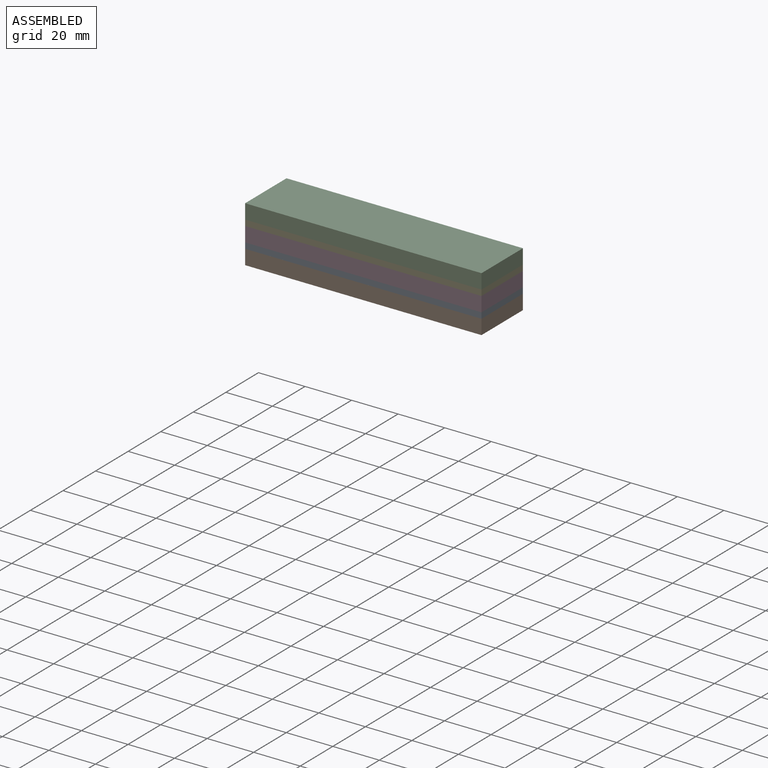
[diagram: assembled view]
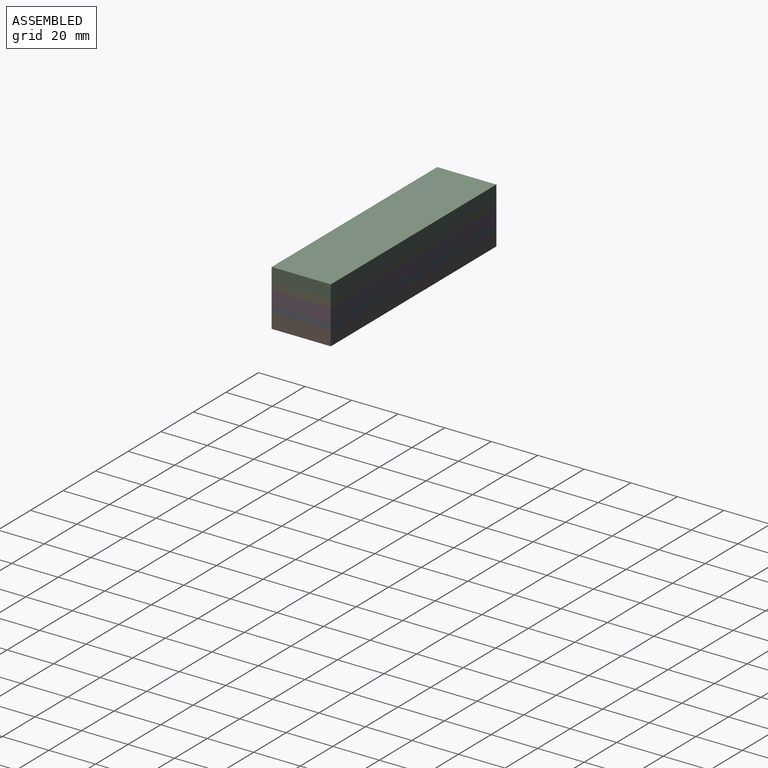
[diagram: assembled view, second angle]
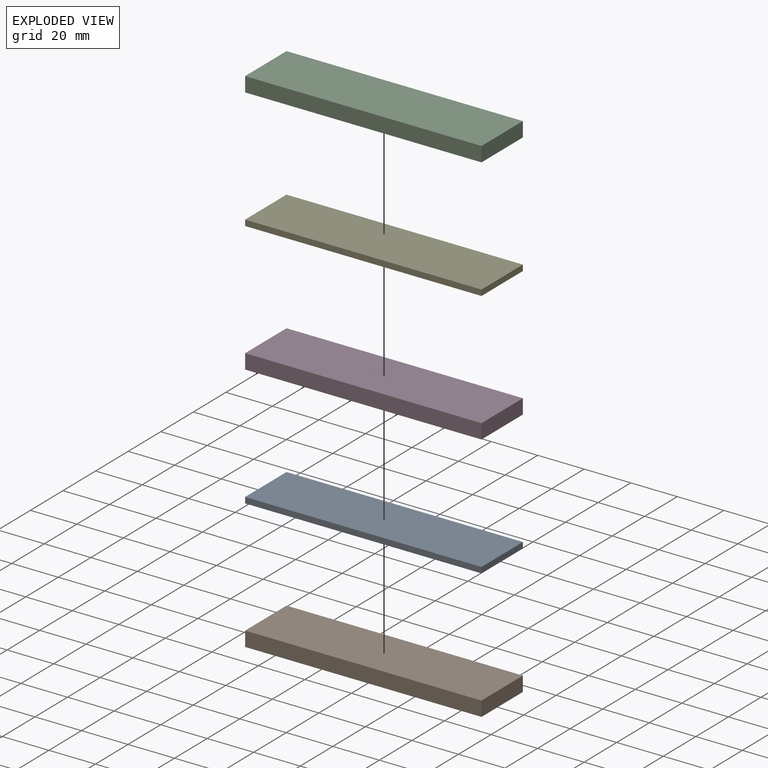
[diagram: exploded view]
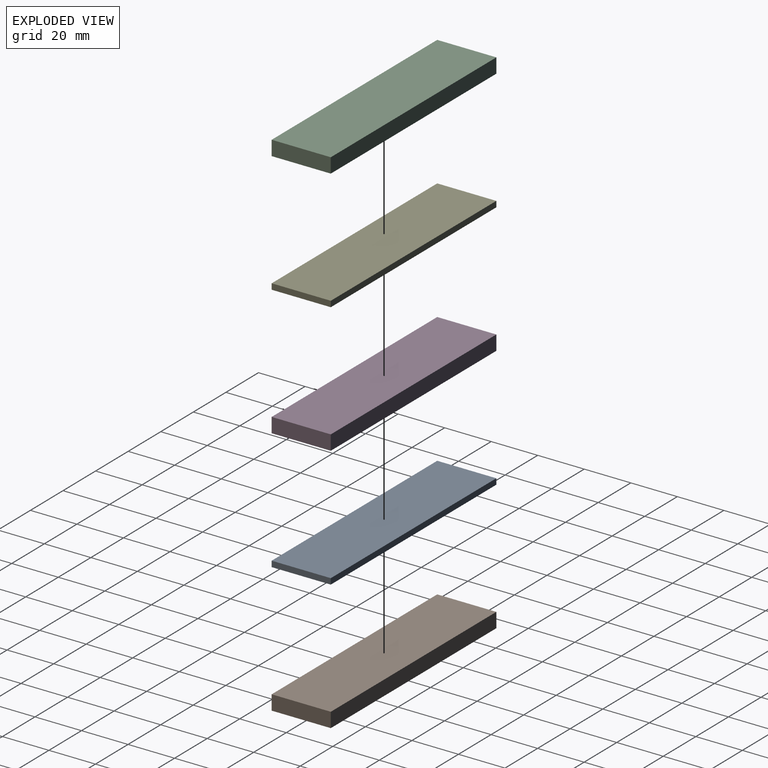
[diagram: exploded view, second angle]
ASSEMBLY  parts=5 mates=4
PART A: 6 faces, bbox 101.6x25.4x2.5 mm
  f0: plane 101.6x2.5mm, normal (0,1,0), area 254mm2, adj f1,f3,f4,f5
  f1: plane 25.4x2.5mm, normal (-1,0,0), area 63.5mm2, adj f0,f2,f4,f5
  f2: plane 101.6x2.5mm, normal (0,-1,0), area 254mm2, adj f1,f3,f4,f5
  f3: plane 25.4x2.5mm, normal (1,0,0), area 63.5mm2, adj f0,f2,f4,f5
  f4: plane 101.6x25.4mm, normal (0,0,1), area 2580.6mm2, adj f0,f1,f2,f3
  f5: plane 101.6x25.4mm, normal (0,0,-1), area 2580.6mm2, adj f0,f1,f2,f3
PART B: 6 faces, bbox 101.6x25.4x6.4 mm
  f0: plane 101.6x6.35mm, normal (0,1,0), area 645.2mm2, adj f1,f3,f4,f5
  f1: plane 25.4x6.35mm, normal (-1,0,0), area 161.3mm2, adj f0,f2,f4,f5
  f2: plane 101.6x6.35mm, normal (0,-1,0), area 645.2mm2, adj f1,f3,f4,f5
  f3: plane 25.4x6.35mm, normal (1,0,0), area 161.3mm2, adj f0,f2,f4,f5
  f4: plane 101.6x25.4mm, normal (0,0,1), area 2580.6mm2, adj f0,f1,f2,f3
  f5: plane 101.6x25.4mm, normal (0,0,-1), area 2580.6mm2, adj f0,f1,f2,f3
PART C: same geometry as B
PART D: same geometry as B
PART E: same geometry as A
PLACE A at identity
PLACE B t=(0,0,-6.35)mm
PLACE C t=(0,0,11.35)mm
PLACE D t=(0,0,2.5)mm
PLACE E t=(0,0,8.85)mm
MATE fastened D.f5 <-> A.f4  axis (0,0,-1) through (0,0,2.5)mm
MATE fastened C.f5 <-> E.f4  axis (0,0,-1) through (0,0,11.35)mm
MATE fastened B.f4 <-> A.f5  axis (0,0,1) through (0,0,0)mm
MATE fastened E.f5 <-> D.f4  axis (0,0,-1) through (0,0,8.85)mm
